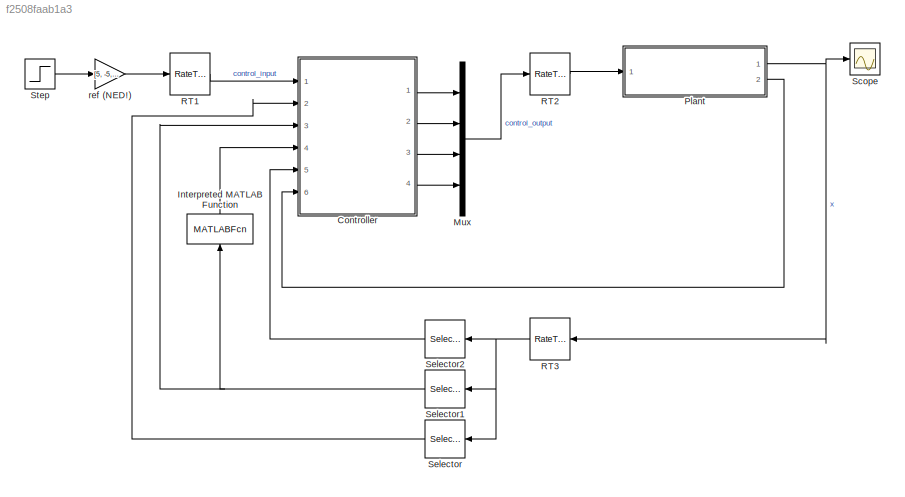
MODEL slx_f2508faab1a3
KIND model
CONFIG AbsTol = auto
CONFIG EnableMultiTasking = off
CONFIG FixedStep = 0.001
CONFIG MaxStep = auto
CONFIG MinStep = auto
CONFIG RelTol = 1e-3
CONFIG SampleTimeConstraint = Unconstrained
CONFIG Solver = ode4
CONFIG SolverName = ode4
CONFIG StartTime = 0.0
CONFIG StopTime = 60
BLOCK [ModelReference] Controller
  ModelNameDialog = feedback_control.slx
  ModelReferenceVersion = 1.95
  Ports = [6, 4]
BLOCK [MATLABFcn] Interpreted MATLAB Function
  MATLABFcn = eul2quat([u(1), u(2), u(3)],'XYZ')'
  OutputDimensions = 4
  Ports = [1, 1]
BLOCK [Mux] Mux
  DisplayOption = bar
  Ports = [4, 1]
BLOCK [ModelReference] Plant
  ModelNameDialog = feedback_plant.slx
  ModelReferenceVersion = 1.82
  Ports = [1, 2]
BLOCK [RateTransition] RT1
  OutPortSampleTime = 0.01
BLOCK [RateTransition] RT2
  OutPortSampleTime = 0.001
BLOCK [RateTransition] RT3
  OutPortSampleTime = 0.01
BLOCK [Scope] Scope
  Floating = off
  NumInputPorts = 1
  Ports = [1]
  ScopeSpecificationString = Simulink.scopes.TimeScopeBlockCfg('CurrentConfiguration', extmgr.ConfigurationSet(extmgr.Configuration('Core','General UI',true),extmgr.Configuration('Core','Source UI',true),extmgr.Configuration('Sources','WiredSimulink',true,'DataLoggingSaveFormat','StructureWithTime','DataLoggingDecimation','1','DataLoggingDecimateData',true),extmgr.Configuration('Visuals','Time Domain',true,'SerializedDisplays...<+1693ch>
BLOCK [Selector] Selector
  IndexOptions = Index vector (dialog)
  Indices = [1:3]
  InputPortWidth = 12
  OutputSizes = 1
  Ports = [1, 1]
BLOCK [Selector] Selector1
  IndexOptions = Index vector (dialog)
  Indices = [4:6]
  InputPortWidth = 12
  OutputSizes = 1
  Ports = [1, 1]
BLOCK [Selector] Selector2
  IndexOptions = Index vector (dialog)
  Indices = [9:12]
  InputPortWidth = 12
  OutputSizes = 1
  Ports = [1, 1]
BLOCK [Step] Step
  SampleTime = 0
  Time = 0
BLOCK [Gain] ref (NED!)
  Gain = [5, -5, -1.5, 0]'
  OutDataTypeStr = Inherit: Inherit via internal rule
  ParamDataTypeStr = Inherit: Inherit via internal rule
  SaturateOnIntegerOverflow = off
LINE Controller:1 -> Mux:1
LINE Controller:2 -> Mux:2
LINE Controller:3 -> Mux:3
LINE Controller:4 -> Mux:4
LINE Interpreted MATLAB Function:1 -> Controller:4
LINE Mux:1 -> RT2:1
NET Plant:1 -> RT3:1, Scope:1
LINE Plant:2 -> Controller:6
LINE RT1:1 -> Controller:1
LINE RT2:1 -> Plant:1
NET RT3:1 -> Selector1:1, Selector2:1, Selector:1
NET Selector1:1 -> Controller:3, Interpreted MATLAB Function:1
LINE Selector2:1 -> Controller:5
LINE Selector:1 -> Controller:2
LINE Step:1 -> ref (NED!):1
LINE ref (NED!):1 -> RT1:1
note: NET lines group one-source signal fan-out (src -> all destinations, sorted); 1:1 wires keep LINE
